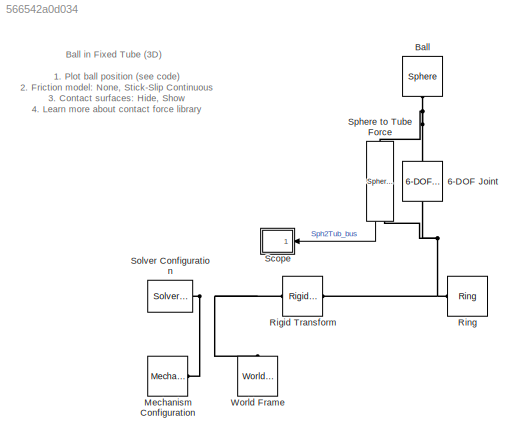
MODEL slx_566542a0d034
KIND model
CONFIG AbsTol = auto
CONFIG EnableMultiTasking = on
CONFIG FixedStep = auto
CONFIG MaxStep = 0.01
CONFIG MinStep = auto
CONFIG RelTol = 1e-4
CONFIG SampleTimeConstraint = Unconstrained
CONFIG SolverName = ode23t
CONFIG StartFcn = tic;
CONFIG StartTime = 0.0
CONFIG StopFcn = Elapsed_Sim_Time = toc;\ndisp(['Elapsed Sim Time = ' num2str(Elapsed_Sim_Time)]);\n
CONFIG StopTime = 5
WORKSPACE source: MATLAB code (in-file)
WORKSPACE code: tube.outer_rad = 2;
WORKSPACE code: tube.inner_rad = 1.7;
WORKSPACE code: tube.length = 8;
WORKSPACE code: ball.rad = 1;
BLOCK [Reference] 6-DOF Joint  REF=sm_lib/Joints/6-DOF Joint
  NameLocation = right
  Ports = [0, 0, 0, 0, 0, 1, 1]
  SourceBlock = sm_lib/Joints/6-DOF Joint
  SourceProductBaseCode = MS
  SourceType = 6-DOF Joint
BLOCK [Reference] Ball  REF=Parts_Lib/Sphere
  NameLocation = right
  Ports = [0, 0, 0, 0, 0, 1]
  SourceBlock = Parts_Lib/Sphere
  SourceType = Sphere with Markings
  Tag = CustomStyle
BLOCK [Reference] Mechanism Configuration  REF=sm_lib/Utilities/Mechanism
Configuration
  Ports = [0, 0, 0, 0, 0, 0, 1]
  SourceBlock = sm_lib/Utilities/Mechanism\nConfiguration
  SourceProductBaseCode = MS
  SourceType = Mechanism\nConfiguration
BLOCK [Reference] Rigid Transform  REF=sm_lib/Frames and
Transforms/Rigid
Transform
  Ports = [0, 0, 0, 0, 0, 1, 1]
  SourceBlock = sm_lib/Frames and\nTransforms/Rigid\nTransform
  SourceProductBaseCode = MS
  SourceType = Rigid\nTransform
BLOCK [Reference] Ring  REF=Parts_Lib/Ring
  NameLocation = top
  Ports = [0, 0, 0, 0, 0, 1]
  SourceBlock = Parts_Lib/Ring
  SourceType = Solid Cylinder with Markings
  Tag = CustomStyle
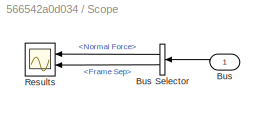
BLOCK [SubSystem] Scope
  Ports = [1]
  RequestExecContextInheritance = off
BLOCK [Inport] Scope/Bus
BLOCK [BusSelector] Scope/Bus Selector
  NameLocation = top
  OutputSignals = Normal Force,Frame Sep
  Ports = [1, 2]
BLOCK [Scope] Scope/Results
  Floating = off
  NameLocation = top
  NumInputPorts = 2
  Ports = [2]
  ScopeSpecificationString = Simulink.scopes.TimeScopeBlockCfg('CurrentConfiguration', extmgr.ConfigurationSet(extmgr.Configuration('Core','General UI',true,'FigureColor',[0.501960784313725 0.501960784313725 0.501960784313725]),extmgr.Configuration('Core','Source UI',true),extmgr.Configuration('Sources','WiredSimulink',true,'DataLoggingVariableName','ScopeData1','DataLoggingSaveFormat','StructureWithTime','DataLoggingDecimati...<+3802ch>
  Tag = PublishScope
BLOCK [Reference] Solver Configuration  REF=nesl_utility/Solver
Configuration
  Ports = [0, 0, 0, 0, 0, 0, 1]
  SourceBlock = nesl_utility/Solver\nConfiguration
  SourceProductBaseCode = PW,SS
  SourceType = Solver\nConfiguration
BLOCK [Reference] Sphere to Tube Force  REF=Contact_Forces_Lib/3D/Sphere to Tube Force
  NameLocation = left
  Ports = [0, 1, 0, 0, 0, 1, 1]
  SourceBlock = Contact_Forces_Lib/3D/Sphere to Tube Force
  SourceProductName = Simscape Multibody Contact Forces Library
  SourceType = Sphere to Tube Force
BLOCK [Reference] World Frame  REF=sm_lib/Frames and
Transforms/World Frame
  NameLocation = right
  Ports = [0, 0, 0, 0, 0, 0, 1]
  SourceBlock = sm_lib/Frames and\nTransforms/World Frame
  SourceProductBaseCode = MS
  SourceType = World Frame
ANNOTATION (root): 1. Plot ball position ( see code ) 2. Friction model: None , Stick-Slip Continuous 3. Contact surfaces: Hide , Show 4. Learn more about contact force library
ANNOTATION (root): Ball in Fixed Tube (3D)
LINE Scope/Bus Selector:1 -> Scope/Results:1
LINE Scope/Bus Selector:2 -> Scope/Results:2
LINE Scope/Bus:1 -> Scope/Bus Selector:1
LINE Sphere to Tube Force:1 -> Scope:1
PNET net1: 6-DOF Joint:LConn1 -- Rigid Transform:RConn1 -- Ring:LConn1 -- Sphere to Tube Force:RConn1
PNET net2: 6-DOF Joint:RConn1 -- Ball:LConn1 -- Sphere to Tube Force:LConn1
PNET net3: Mechanism Configuration:RConn1 -- Rigid Transform:LConn1 -- Solver Configuration:RConn1 -- World Frame:RConn1
note: PNET lines group multi-terminal physical nets as a canonical sorted terminal list (undirected conserving connections); 2-terminal nets keep the pairwise PLINE form
